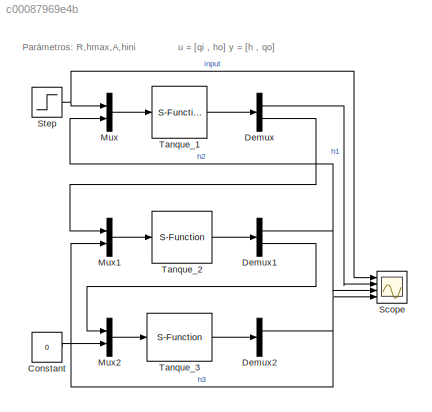
MODEL slx_c00087969e4b
KIND model
CONFIG AbsTol = auto
CONFIG EnableMultiTasking = off
CONFIG FixedStep = auto
CONFIG MaxStep = auto
CONFIG MinStep = auto
CONFIG RelTol = 1e-4
CONFIG SampleTimeConstraint = Unconstrained
CONFIG Solver = ode45
CONFIG SolverName = ode45
CONFIG StartTime = 0.0
CONFIG StopTime = 35
BLOCK [Constant] Constant
  Value = 0
BLOCK [Demux] Demux
  DisplayOption = bar
  Outputs = 2
  Ports = [1, 2]
BLOCK [Demux] Demux1
  DisplayOption = bar
  Outputs = 2
  Ports = [1, 2]
BLOCK [Demux] Demux2
  DisplayOption = bar
  Outputs = 2
  Ports = [1, 2]
BLOCK [Mux] Mux
  DisplayOption = bar
  Inputs = 2
  Ports = [2, 1]
BLOCK [Mux] Mux1
  DisplayOption = bar
  Inputs = 2
  Ports = [2, 1]
BLOCK [Mux] Mux2
  DisplayOption = bar
  Inputs = 2
  Ports = [2, 1]
BLOCK [Scope] Scope
  NumInputPorts = 4
  Ports = [4]
  ScopeSpecificationString = Simulink.scopes.TimeScopeBlockCfg('CurrentConfiguration', extmgr.ConfigurationSet(extmgr.Configuration('Core','General UI',true),extmgr.Configuration('Core','Source UI',true),extmgr.Configuration('Sources','WiredSimulink',true),extmgr.Configuration('Visuals','Time Domain',true,'SerializedDisplays',{struct('MinYLimReal','-1.25','MaxYLimReal','11.25','YLabelReal','','MinYLimMag','0.00000','MaxYLimMa...<+1421ch>
BLOCK [Step] Step
  SampleTime = 0
BLOCK [S-Function] Tanque_1
  EnableBusSupport = off
  FunctionName = tanque
  Parameters = 0.5,10,2,9
  Ports = [1, 1]
  SFcnIsStateOwnerBlock = off
  SFunctionDeploymentMode = off
BLOCK [S-Function] Tanque_2
  EnableBusSupport = off
  FunctionName = tanque
  Parameters = 1,10,2,5
  Ports = [1, 1]
  SFcnIsStateOwnerBlock = off
  SFunctionDeploymentMode = off
BLOCK [S-Function] Tanque_3
  EnableBusSupport = off
  FunctionName = tanque
  Parameters = 0.75,10,2,10
  Ports = [1, 1]
  SFcnIsStateOwnerBlock = off
  SFunctionDeploymentMode = off
ANNOTATION (root): Parámetros: R,hmax,A,hini
ANNOTATION (root): u = [qi , ho] y = [h , qo]
LINE Constant:1 -> Mux2:2
NET Demux1:1 -> Mux:2, Scope:3
LINE Demux1:2 -> Mux2:1
NET Demux2:1 -> Mux1:2, Scope:4
LINE Demux:1 -> Scope:2
LINE Demux:2 -> Mux1:1
LINE Mux1:1 -> Tanque_2:1
LINE Mux2:1 -> Tanque_3:1
LINE Mux:1 -> Tanque_1:1
NET Step:1 -> Mux:1, Scope:1
LINE Tanque_1:1 -> Demux:1
LINE Tanque_2:1 -> Demux1:1
LINE Tanque_3:1 -> Demux2:1
note: NET lines group one-source signal fan-out (src -> all destinations, sorted); 1:1 wires keep LINE
